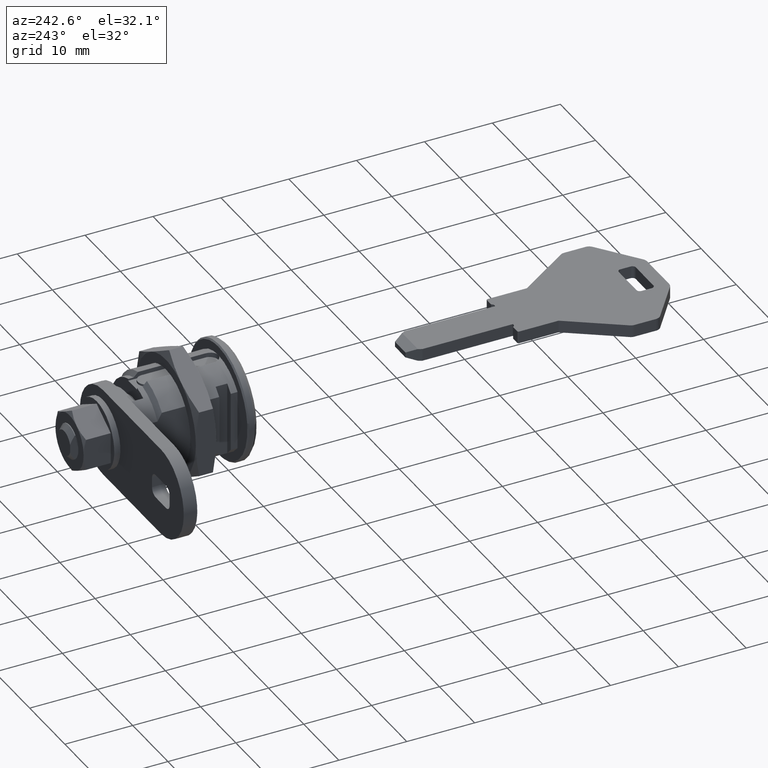
[diagram: clean part render]
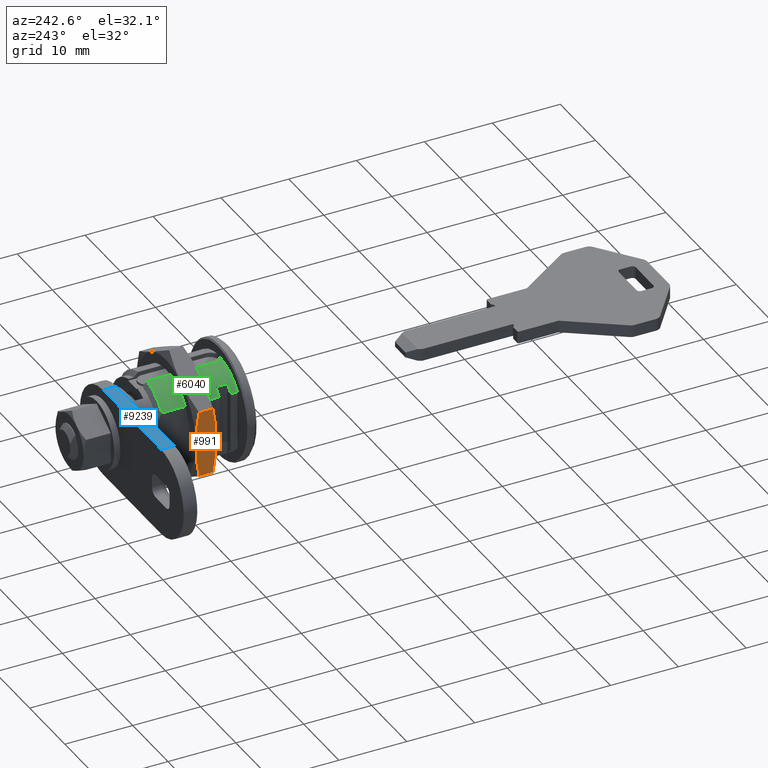
[diagram: same view with three faces highlighted in distinct colors, each labeled with its STEP entity id]
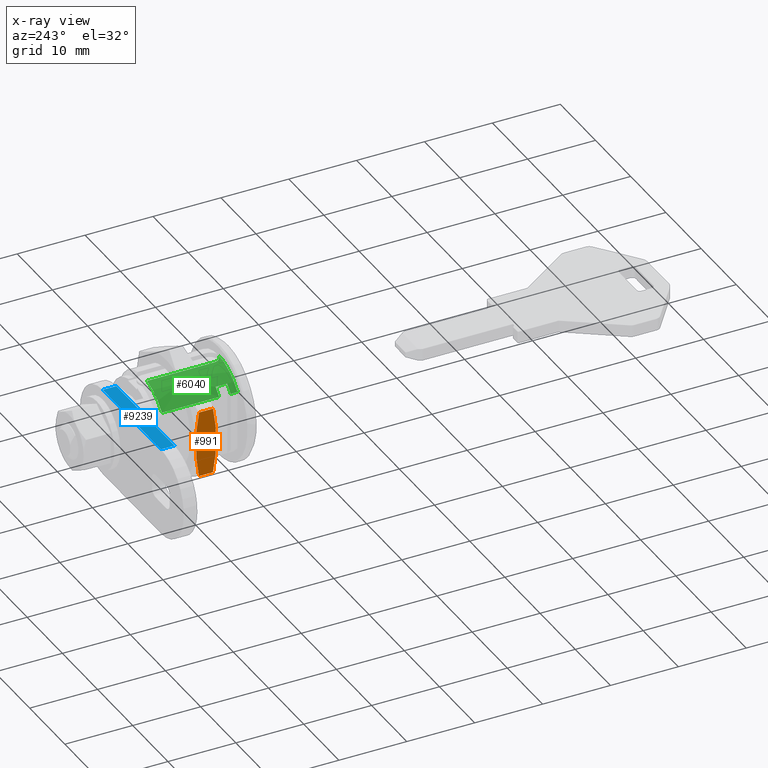
[diagram: x-ray of the same camera — body ghosted, the three highlighted faces saturated]
A machine part, auxiliary view with three faces highlighted in distinct colors.
The next image is the same camera in x-ray (body ghosted, the three faces saturated) — at least one of them is partly hidden behind the body in this view.
Their STEP definitions:

[orange] entity #991 — the highlighted face is a freeform B-spline surface patch.
#244=CARTESIAN_POINT('',(6.678604325159580,8.499999999999821,-4.907477288108670));
#245=VERTEX_POINT('',#244);
#259=CARTESIAN_POINT('',(6.199999999999880,8.499999999999879,-9.314351E-014));
#260=VERTEX_POINT('',#259);
#274=CARTESIAN_POINT('',(6.199999999999880,8.499999999999879,-9.314351E-014));
#275=CARTESIAN_POINT('',(6.200001015904592,8.499999999999872,-0.406858091526863));
#276=CARTESIAN_POINT('',(6.210685708139059,8.499999999999869,-0.813941450004291));
#277=CARTESIAN_POINT('',(6.252973510584710,8.499999999999854,-1.630904822132298));
#278=CARTESIAN_POINT('',(6.284685473140359,8.499999999999851,-2.040787130906435));
#279=CARTESIAN_POINT('',(6.367390161938368,8.499999999999844,-2.860958278375801));
#280=CARTESIAN_POINT('',(6.418369205522667,8.499999999999840,-3.271269417400833));
#281=CARTESIAN_POINT('',(6.537121516577996,8.499999999999830,-4.092155079840447));
#282=CARTESIAN_POINT('',(6.604563054602390,8.499999999999826,-4.500623850182640));
#283=CARTESIAN_POINT('',(6.678604325159586,8.499999999999821,-4.907477288108666));
#284=B_SPLINE_CURVE_WITH_KNOTS('',3,(#274,#275,#276,#277,#278,#279,#280,#281,#282,#283),.UNSPECIFIED.,.F.,.U.,(4,2,2,2,4),(0.0,0.124280450561107,0.249280450561107,0.374280450561107,0.499280450561107),.UNSPECIFIED.);
#285=EDGE_CURVE('',#260,#245,#284,.T.);
#306=CARTESIAN_POINT('',(6.678604325159580,8.500000000000000,4.907477288108480));
#307=VERTEX_POINT('',#306);
#319=CARTESIAN_POINT('',(6.678604325159580,8.500000000000000,4.907477288108480));
#320=CARTESIAN_POINT('',(6.641546249281992,8.499999999999925,4.703844834744839));
#321=CARTESIAN_POINT('',(6.606154992589164,8.499999999999920,4.499853491113202));
#322=CARTESIAN_POINT('',(6.539203756536926,8.499999999999920,4.092051470391771));
#323=CARTESIAN_POINT('',(6.507620079927002,8.499999999999917,3.888110568935077));
#324=CARTESIAN_POINT('',(6.419043875547213,8.499999999999909,3.276157669965687));
#325=CARTESIAN_POINT('',(6.368239680245377,8.499999999999904,2.868015193061669));
#326=CARTESIAN_POINT('',(6.285613628527130,8.499999999999895,2.051330001542381));
#327=CARTESIAN_POINT('',(6.253808813521427,8.499999999999895,1.642786927613372));
#328=CARTESIAN_POINT('',(6.211058153118527,8.499999999999886,0.825260973770129));
#329=CARTESIAN_POINT('',(6.200061959963845,8.499999999999881,0.413923559690907));
#330=CARTESIAN_POINT('',(6.200000203769195,8.499999999999876,0.002355595833329));
#331=CARTESIAN_POINT('',(6.199999999999880,8.499999999999879,-9.314351E-014));
#332=B_SPLINE_CURVE_WITH_KNOTS('',3,(#319,#320,#321,#322,#323,#324,#325,#326,#327,#328,#329,#330,#331),.UNSPECIFIED.,.F.,.U.,(4,2,2,2,2,1,4),(0.499280450561106,0.561780450561106,0.624280450561106,0.749280450561106,0.874280450561106,0.999280450561106,1.0),.UNSPECIFIED.);
#333=EDGE_CURVE('',#307,#260,#332,.T.);
#596=CARTESIAN_POINT('',(8.721395674841990,8.499999999999821,-4.907477288108670));
#597=VERTEX_POINT('',#596);
#609=CARTESIAN_POINT('',(9.199999999999871,8.499999999999879,-9.314351E-014));
#610=VERTEX_POINT('',#609);
#611=CARTESIAN_POINT('',(8.721395674841990,8.499999999999821,-4.907477288108672));
#612=CARTESIAN_POINT('',(8.795436945398931,8.499999999999826,-4.500623850182600));
#613=CARTESIAN_POINT('',(8.862878483423090,8.499999999999830,-4.092155079840374));
#614=CARTESIAN_POINT('',(8.981630794478001,8.499999999999840,-3.271269417400718));
#615=CARTESIAN_POINT('',(9.032609838062115,8.499999999999844,-2.860958278375663));
#616=CARTESIAN_POINT('',(9.115314526859830,8.499999999999847,-2.040787130906269));
#617=CARTESIAN_POINT('',(9.147026489415360,8.499999999999853,-1.630904822132121));
#618=CARTESIAN_POINT('',(9.189314291715416,8.499999999999867,-0.813941452813946));
#619=CARTESIAN_POINT('',(9.199999378712761,8.499999999999870,-0.406858088819815));
#620=CARTESIAN_POINT('',(9.199999999999871,8.499999999999879,-9.314351E-014));
#621=B_SPLINE_CURVE_WITH_KNOTS('',3,(#611,#612,#613,#614,#615,#616,#617,#618,#619,#620),.UNSPECIFIED.,.F.,.U.,(4,2,2,2,4),(0.0,0.125000000000000,0.250000000000000,0.375000000000000,0.499280449703738),.UNSPECIFIED.);
#622=EDGE_CURVE('',#597,#610,#621,.T.);
#654=CARTESIAN_POINT('',(8.721395674841990,8.500000000000000,4.907477288108480));
#655=VERTEX_POINT('',#654);
#682=CARTESIAN_POINT('',(9.199999999999871,8.499999999999879,-9.314351E-014));
#683=CARTESIAN_POINT('',(9.200000195567581,8.499999999999872,0.002355598639892));
#684=CARTESIAN_POINT('',(9.199938441759125,8.499999999999876,0.413923565354553));
#685=CARTESIAN_POINT('',(9.188941846881383,8.499999999999881,0.825260973770310));
#686=CARTESIAN_POINT('',(9.146191186478628,8.499999999999895,1.642786927613529));
#687=CARTESIAN_POINT('',(9.114386371473037,8.499999999999901,2.051330001542528));
#688=CARTESIAN_POINT('',(9.031760319755081,8.499999999999906,2.868015193061777));
#689=CARTESIAN_POINT('',(8.980956124453428,8.499999999999908,3.276157669965771));
#690=CARTESIAN_POINT('',(8.892379920073955,8.499999999999915,3.888110568935123));
#691=CARTESIAN_POINT('',(8.860796243464153,8.499999999999920,4.092051470391801));
#692=CARTESIAN_POINT('',(8.793845007412152,8.499999999999924,4.499853491113203));
#693=CARTESIAN_POINT('',(8.758453750719461,8.499999999999925,4.703844834744809));
#694=CARTESIAN_POINT('',(8.721395674841990,8.500000000000000,4.907477288108480));
#695=B_SPLINE_CURVE_WITH_KNOTS('',3,(#682,#683,#684,#685,#686,#687,#688,#689,#690,#691,#692,#693,#694),.UNSPECIFIED.,.F.,.U.,(4,1,2,2,2,2,4),(0.499280449703738,0.500000000000000,0.625000000000000,0.750000000000000,0.875000000000000,0.937500000000000,1.0),.UNSPECIFIED.);
#696=EDGE_CURVE('',#610,#655,#695,.T.);
#970=CARTESIAN_POINT('',(6.050149819399596,8.499999999999821,5.397734342303013));
#971=CARTESIAN_POINT('',(6.050149819399596,8.499999999999821,-5.397734517808268));
#972=CARTESIAN_POINT('',(9.349849858735075,8.499999999999821,5.397734342303013));
#973=CARTESIAN_POINT('',(9.349849858735075,8.499999999999821,-5.397734517808268));
#974=B_SPLINE_SURFACE_WITH_KNOTS('',1,1,((#970,#972),(#971,#973)),.UNSPECIFIED.,.F.,.F.,.U.,(2,2),(2,2),(0.0,10.795468860111280),(0.0,3.299700039335479),.UNSPECIFIED.);
#975=ORIENTED_EDGE('',*,*,#333,.F.);
#976=CARTESIAN_POINT('',(8.721395674841990,8.500000000000000,4.907477288108480));
#977=CARTESIAN_POINT('',(6.678604325159580,8.500000000000000,4.907477288108480));
#978=QUASI_UNIFORM_CURVE('',1,(#976,#977),.UNSPECIFIED.,.F.,.U.);
#979=EDGE_CURVE('',#655,#307,#978,.T.);
#980=ORIENTED_EDGE('',*,*,#979,.F.);
#981=ORIENTED_EDGE('',*,*,#696,.F.);
#982=ORIENTED_EDGE('',*,*,#622,.F.);
#983=CARTESIAN_POINT('',(8.721395674841990,8.499999999999821,-4.907477288108670));
#984=CARTESIAN_POINT('',(6.678604325159580,8.499999999999821,-4.907477288108670));
#985=QUASI_UNIFORM_CURVE('',1,(#983,#984),.UNSPECIFIED.,.F.,.U.);
#986=EDGE_CURVE('',#597,#245,#985,.T.);
#987=ORIENTED_EDGE('',*,*,#986,.T.);
#988=ORIENTED_EDGE('',*,*,#285,.F.);
#989=EDGE_LOOP('',(#975,#980,#981,#982,#987,#988));
#990=FACE_OUTER_BOUND('',#989,.T.);
#991=ADVANCED_FACE('',(#990),#974,.F.);

[blue] entity #9239 — the highlighted face is a freeform B-spline surface patch.
#8495=CARTESIAN_POINT('',(16.500000000000000,16.499999999999151,6.500000000028490));
#8496=VERTEX_POINT('',#8495);
#8497=CARTESIAN_POINT('',(16.500000000000000,-7.669882E-013,6.500000000200640));
#8498=VERTEX_POINT('',#8497);
#8499=CARTESIAN_POINT('',(16.500000000000000,16.499999999999151,6.500000000028490));
#8500=CARTESIAN_POINT('',(16.500000000000000,-7.669882E-013,6.500000000200640));
#8501=QUASI_UNIFORM_CURVE('',1,(#8499,#8500),.UNSPECIFIED.,.F.,.U.);
#8502=EDGE_CURVE('',#8496,#8498,#8501,.T.);
#8733=CARTESIAN_POINT('',(18.500000000000000,16.499999999999151,6.500000000028490));
#8734=VERTEX_POINT('',#8733);
#8735=CARTESIAN_POINT('',(18.500000000000000,-7.669882E-013,6.500000000200640));
#8736=VERTEX_POINT('',#8735);
#8737=CARTESIAN_POINT('',(18.500000000000000,16.499999999999151,6.500000000028490));
#8738=CARTESIAN_POINT('',(18.500000000000000,-7.669882E-013,6.500000000200640));
#8739=QUASI_UNIFORM_CURVE('',1,(#8737,#8738),.UNSPECIFIED.,.F.,.U.);
#8740=EDGE_CURVE('',#8734,#8736,#8739,.T.);
#9025=CARTESIAN_POINT('',(18.500000000000000,16.499999999999151,6.500000000028490));
#9026=CARTESIAN_POINT('',(16.500000000000000,16.499999999999151,6.500000000028490));
#9027=QUASI_UNIFORM_CURVE('',1,(#9025,#9026),.UNSPECIFIED.,.F.,.U.);
#9028=EDGE_CURVE('',#8734,#8496,#9027,.T.);
#9220=CARTESIAN_POINT('',(18.500000000000000,-7.669882E-013,6.500000000200640));
#9221=CARTESIAN_POINT('',(16.500000000000000,-7.669882E-013,6.500000000200640));
#9222=QUASI_UNIFORM_CURVE('',1,(#9220,#9221),.UNSPECIFIED.,.F.,.U.);
#9223=EDGE_CURVE('',#8736,#8498,#9222,.T.);
#9228=CARTESIAN_POINT('',(18.599899996123611,-0.824174968020562,6.500000000200600));
#9229=CARTESIAN_POINT('',(16.400099950232210,-0.824174968020562,6.500000000200600));
#9230=CARTESIAN_POINT('',(18.599899996123611,17.324175410583429,6.500000000200600));
#9231=CARTESIAN_POINT('',(16.400099950232210,17.324175410583429,6.500000000200600));
#9232=B_SPLINE_SURFACE_WITH_KNOTS('',1,1,((#9228,#9230),(#9229,#9231)),.UNSPECIFIED.,.F.,.F.,.U.,(2,2),(2,2),(0.0,2.199800045891408),(0.0,18.148350378603990),.UNSPECIFIED.);
#9233=ORIENTED_EDGE('',*,*,#8502,.T.);
#9234=ORIENTED_EDGE('',*,*,#9223,.F.);
#9235=ORIENTED_EDGE('',*,*,#8740,.F.);
#9236=ORIENTED_EDGE('',*,*,#9028,.T.);
#9237=EDGE_LOOP('',(#9233,#9234,#9235,#9236));
#9238=FACE_OUTER_BOUND('',#9237,.T.);
#9239=ADVANCED_FACE('',(#9238),#9232,.F.);

[green] entity #6040 — the highlighted face is a freeform B-spline surface patch.
#4249=CARTESIAN_POINT('',(2.749999999999900,1.250000000000054,6.887488656992010));
#4250=VERTEX_POINT('',#4249);
#4256=CARTESIAN_POINT('',(1.499999999987974,0.0,7.000000000005220));
#4257=VERTEX_POINT('',#4256);
#4258=CARTESIAN_POINT('',(1.499999999987974,0.0,7.000000000005220));
#4259=CARTESIAN_POINT('',(1.499999919322405,0.040520940084144,7.000000000876057));
#4260=CARTESIAN_POINT('',(1.501965348580208,0.081163116450783,6.999648207609058));
#4261=CARTESIAN_POINT('',(1.509988906713674,0.163026320661103,6.998222045665920));
#4262=CARTESIAN_POINT('',(1.516051344027811,0.203821056416608,6.997147101404267));
#4263=CARTESIAN_POINT('',(1.539991799938073,0.324144088700785,6.992951661215367));
#4264=CARTESIAN_POINT('',(1.563615820849166,0.402139633169684,6.988851942695587));
#4265=CARTESIAN_POINT('',(1.610640957271079,0.515792495125983,6.981074418919230));
#4266=CARTESIAN_POINT('',(1.628354776859578,0.553253593465256,6.978196356142992));
#4267=CARTESIAN_POINT('',(1.666977893725871,0.625492336162073,6.972092459295994));
#4268=CARTESIAN_POINT('',(1.708907375421336,0.695397938385329,6.965621586278638));
#4269=CARTESIAN_POINT('',(1.757315878427029,0.760749728064079,6.958610997844378));
#4270=CARTESIAN_POINT('',(1.808993662187073,0.823813684135291,6.951427060820084));
#4271=CARTESIAN_POINT('',(1.836559266677963,0.854293298964273,6.947736546133471));
#4272=CARTESIAN_POINT('',(1.923743097448344,0.941575056367769,6.936632975239546));
#4273=CARTESIAN_POINT('',(1.986655389743263,0.993187114573059,6.929334395376124));
#4274=CARTESIAN_POINT('',(2.088013178370832,1.061097242306216,6.919147100213257));
#4275=CARTESIAN_POINT('',(2.122972624866065,1.082137369201646,6.915877722279001));
#4276=CARTESIAN_POINT('',(2.195311196899247,1.120939314461157,6.909694711681046));
#4277=CARTESIAN_POINT('',(2.232702885989598,1.138673370495384,6.906784786849717));
#4278=CARTESIAN_POINT('',(2.346033681105316,1.185750651930564,6.898913533086302));
#4279=CARTESIAN_POINT('',(2.423924288327326,1.209492577664918,6.894736757181608));
#4280=CARTESIAN_POINT('',(2.544285725612800,1.233635300080887,6.890443436971528));
#4281=CARTESIAN_POINT('',(2.585141274642393,1.239769780438669,6.889338732400875));
#4282=CARTESIAN_POINT('',(2.667379351484412,1.247950854903480,6.887861492654561));
#4283=CARTESIAN_POINT('',(2.708625731967035,1.249999999999971,6.887488656992031));
#4284=CARTESIAN_POINT('',(2.749999999999900,1.250000000000054,6.887488656992010));
#4285=B_SPLINE_CURVE_WITH_KNOTS('',3,(#4258,#4259,#4260,#4261,#4262,#4263,#4264,#4265,#4266,#4267,#4268,#4269,#4270,#4271,#4272,#4273,#4274,#4275,#4276,#4277,#4278,#4279,#4280,#4281,#4282,#4283,#4284),.UNSPECIFIED.,.F.,.U.,(4,2,2,2,2,1,2,2,2,2,2,2,2,4),(0.500249794256913,0.531249999999999,0.562499999999999,0.624999999999999,0.656249999999999,0.687499999999999,0.718749999999999,0.749999999999999,0.812499999999999,0.843749999999999,0.875000000000000,0.937500000000000,0.968750000000000,1.0),.UNSPECIFIED.);
#4286=EDGE_CURVE('',#4257,#4250,#4285,.T.);
#4372=CARTESIAN_POINT('',(4.200000000001480,4.500000000009120,5.361902647419200));
#4373=VERTEX_POINT('',#4372);
#4381=CARTESIAN_POINT('',(4.200000000001535,5.499999999997290,4.330127018953985));
#4382=VERTEX_POINT('',#4381);
#4383=CARTESIAN_POINT('',(4.200000000001535,5.499999999997290,4.330127018953985));
#4384=CARTESIAN_POINT('',(4.200000000001480,5.053228047368487,4.897603614600073));
#4385=CARTESIAN_POINT('',(4.200000000001480,4.500000000009120,5.361902647419200));
#4393=(BOUNDED_CURVE()B_SPLINE_CURVE(2,(#4383,#4384,#4385),.UNSPECIFIED.,.F.,.U.)CURVE()GEOMETRIC_REPRESENTATION_ITEM()QUASI_UNIFORM_CURVE()RATIONAL_B_SPLINE_CURVE((1.0,0.994719320099035,1.0))REPRESENTATION_ITEM(''));
#4394=EDGE_CURVE('',#4382,#4373,#4393,.T.);
#4424=CARTESIAN_POINT('',(2.500000000008485,5.499999999996100,4.330127018953966));
#4425=VERTEX_POINT('',#4424);
#4433=CARTESIAN_POINT('',(2.500000000006980,4.499999999996081,5.361902647419200));
#4434=VERTEX_POINT('',#4433);
#4435=CARTESIAN_POINT('',(2.500000000006980,4.499999999996081,5.361902647419200));
#4436=CARTESIAN_POINT('',(2.500000000007811,5.053228047365085,4.897603614604275));
#4437=CARTESIAN_POINT('',(2.500000000008485,5.499999999996100,4.330127018953966));
#4445=(BOUNDED_CURVE()B_SPLINE_CURVE(2,(#4435,#4436,#4437),.UNSPECIFIED.,.F.,.U.)CURVE()GEOMETRIC_REPRESENTATION_ITEM()QUASI_UNIFORM_CURVE()RATIONAL_B_SPLINE_CURVE((1.0,0.994719320098967,1.0))REPRESENTATION_ITEM(''));
#4446=EDGE_CURVE('',#4434,#4425,#4445,.T.);
#4477=CARTESIAN_POINT('',(4.200000000001480,4.500000000009120,5.361902647419200));
#4478=CARTESIAN_POINT('',(2.500000000006980,4.499999999996081,5.361902647419200));
#4479=QUASI_UNIFORM_CURVE('',1,(#4477,#4478),.UNSPECIFIED.,.F.,.U.);
#4480=EDGE_CURVE('',#4373,#4434,#4479,.T.);
#4850=CARTESIAN_POINT('',(12.649999999991500,5.499999999997290,4.330127018953985));
#4851=VERTEX_POINT('',#4850);
#4852=CARTESIAN_POINT('',(12.649999999991500,5.499999999997290,4.330127018953985));
#4853=CARTESIAN_POINT('',(4.200000000001535,5.499999999997290,4.330127018953985));
#4854=QUASI_UNIFORM_CURVE('',1,(#4852,#4853),.UNSPECIFIED.,.F.,.U.);
#4855=EDGE_CURVE('',#4851,#4382,#4854,.T.);
#5332=CARTESIAN_POINT('',(1.499999999986956,5.499999999997290,4.330127018953985));
#5333=VERTEX_POINT('',#5332);
#5334=CARTESIAN_POINT('',(1.499999999987974,0.0,7.000000000005220));
#5335=CARTESIAN_POINT('',(1.499999999988993,3.398020157719627,7.000000000001500));
#5336=CARTESIAN_POINT('',(1.499999999986956,5.499999999997290,4.330127018953985));
#5344=(BOUNDED_CURVE()B_SPLINE_CURVE(2,(#5334,#5335,#5336),.UNSPECIFIED.,.F.,.U.)CURVE()GEOMETRIC_REPRESENTATION_ITEM()QUASI_UNIFORM_CURVE()RATIONAL_B_SPLINE_CURVE((1.0,0.899608129725030,1.0))REPRESENTATION_ITEM(''));
#5345=EDGE_CURVE('',#4257,#5333,#5344,.T.);
#5993=CARTESIAN_POINT('',(12.928749999991620,5.647752295844661,4.135564532802587));
#5994=CARTESIAN_POINT('',(1.214281249986838,5.647752295844661,4.135564532802587));
#5995=CARTESIAN_POINT('',(12.928749999991620,3.435872274869672,7.156228427056666));
#5996=CARTESIAN_POINT('',(1.214281249986838,3.435872274869672,7.156228427056666));
#5997=CARTESIAN_POINT('',(12.928749999991613,-0.304488961400362,6.993374469637606));
#5998=CARTESIAN_POINT('',(1.214281249986838,-0.304488961400362,6.993374469637606));
#6006=(BOUNDED_SURFACE()B_SPLINE_SURFACE(1,2,((#5993,#5995,#5997),(#5994,#5996,#5998)),.UNSPECIFIED.,.F.,.F.,.U.)B_SPLINE_SURFACE_WITH_KNOTS((2,2),(3,3),(0.0,11.714468750004780),(0.0,7.017476628106759),.UNSPECIFIED.)GEOMETRIC_REPRESENTATION_ITEM()RATIONAL_B_SPLINE_SURFACE(((1.0,0.880411149382485,0.996853862398618),(1.0,0.880411149382485,0.996853862398618)))REPRESENTATION_ITEM('')SURFACE());
#6007=ORIENTED_EDGE('',*,*,#4286,.T.);
#6008=CARTESIAN_POINT('',(12.649999999991479,1.249999999999932,6.887488657004580));
#6009=VERTEX_POINT('',#6008);
#6010=CARTESIAN_POINT('',(2.749999999999900,1.250000000000054,6.887488656992010));
#6011=CARTESIAN_POINT('',(12.649999999991479,1.249999999999932,6.887488657004580));
#6012=QUASI_UNIFORM_CURVE('',1,(#6010,#6011),.UNSPECIFIED.,.F.,.U.);
#6013=EDGE_CURVE('',#4250,#6009,#6012,.T.);
#6014=ORIENTED_EDGE('',*,*,#6013,.T.);
#6015=CARTESIAN_POINT('',(12.649999999991479,1.249999999999932,6.887488657004580));
#6016=CARTESIAN_POINT('',(12.649999999991483,3.859451744279154,6.413903168477980));
#6017=CARTESIAN_POINT('',(12.649999999991500,5.499999999997290,4.330127018953985));
#6025=(BOUNDED_CURVE()B_SPLINE_CURVE(2,(#6015,#6016,#6017),.UNSPECIFIED.,.F.,.U.)CURVE()GEOMETRIC_REPRESENTATION_ITEM()QUASI_UNIFORM_CURVE()RATIONAL_B_SPLINE_CURVE((1.0,0.935134502637170,1.0))REPRESENTATION_ITEM(''));
#6026=EDGE_CURVE('',#6009,#4851,#6025,.T.);
#6027=ORIENTED_EDGE('',*,*,#6026,.T.);
#6028=ORIENTED_EDGE('',*,*,#4855,.T.);
#6029=ORIENTED_EDGE('',*,*,#4394,.T.);
#6030=ORIENTED_EDGE('',*,*,#4480,.T.);
#6031=ORIENTED_EDGE('',*,*,#4446,.T.);
#6032=CARTESIAN_POINT('',(2.500000000008485,5.499999999996100,4.330127018953966));
#6033=CARTESIAN_POINT('',(1.499999999986956,5.499999999997290,4.330127018953985));
#6034=QUASI_UNIFORM_CURVE('',1,(#6032,#6033),.UNSPECIFIED.,.F.,.U.);
#6035=EDGE_CURVE('',#4425,#5333,#6034,.T.);
#6036=ORIENTED_EDGE('',*,*,#6035,.T.);
#6037=ORIENTED_EDGE('',*,*,#5345,.F.);
#6038=EDGE_LOOP('',(#6007,#6014,#6027,#6028,#6029,#6030,#6031,#6036,#6037));
#6039=FACE_OUTER_BOUND('',#6038,.T.);
#6040=ADVANCED_FACE('',(#6039),#6006,.T.);